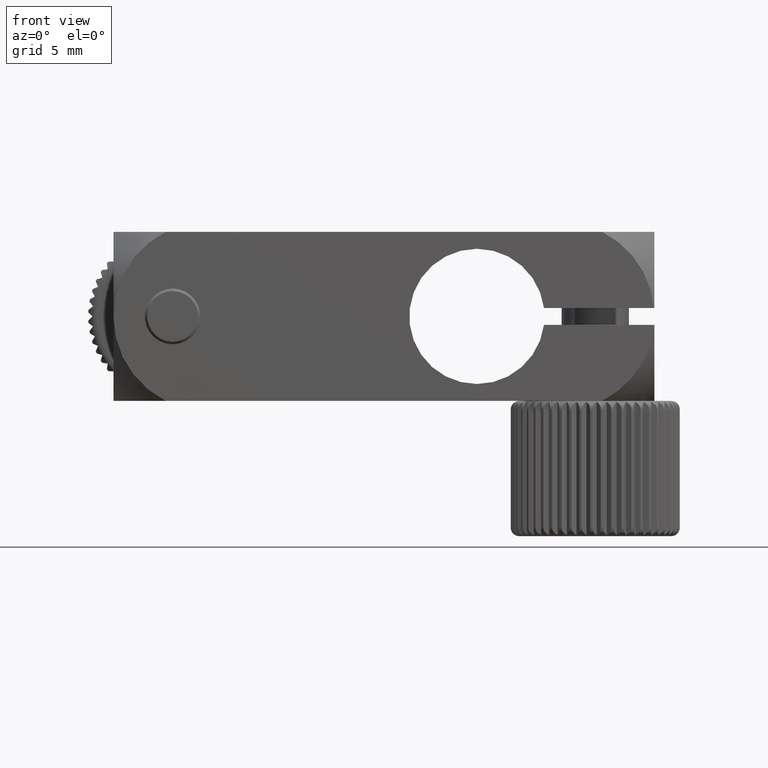
[diagram: clean part render]
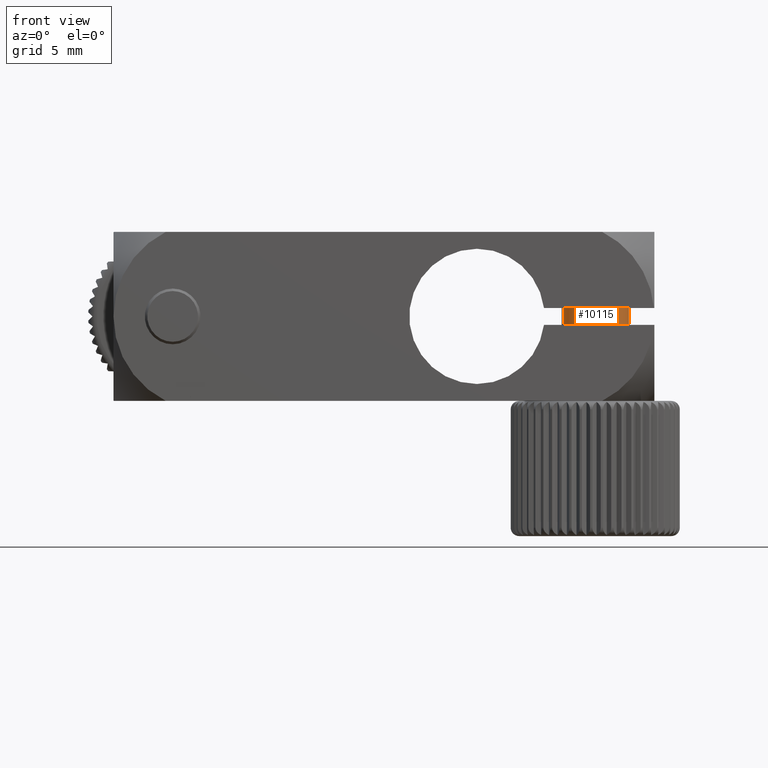
[diagram: same view with one face highlighted and labeled with its STEP entity id]
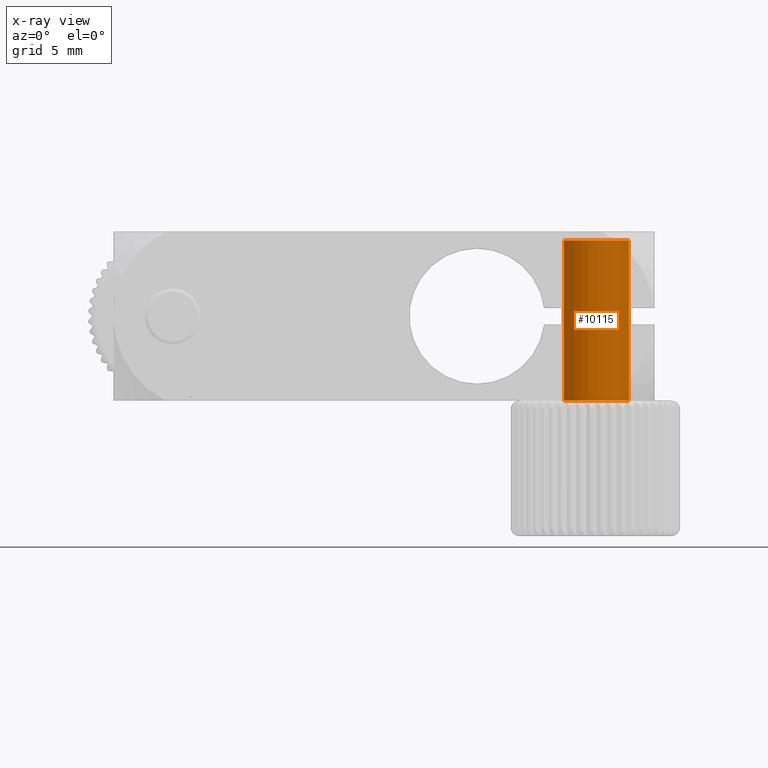
[diagram: x-ray of the same camera — body ghosted, the highlighted face saturated]
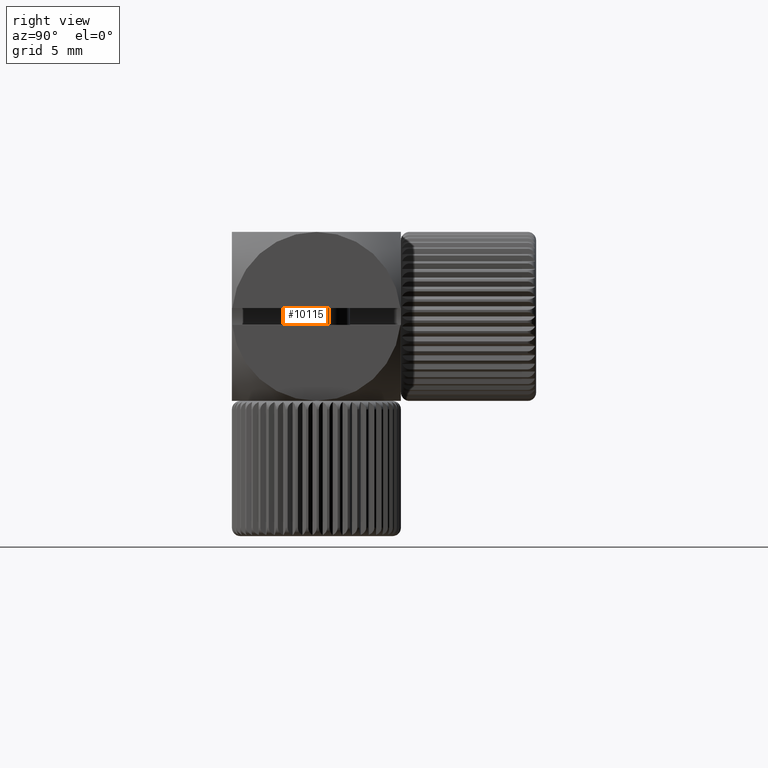
[diagram: same view with one face highlighted and labeled with its STEP entity id]
A machine part, front view. The second image highlights one B-rep face of the part: STEP entity #10115.
The next image is the same camera in x-ray: the body ghosted, the highlighted face saturated — about 0% of this face is hidden behind the body in this view.
A second angle (right view) of the same face is appended — the face is thin or edge-on in the first view.
In plain terms, the highlighted cylindrical surface (edge-blend (fillet) strip) has radius 2 mm, axis along (0, 0, 1).
Its self-contained STEP definition (entity closure, byte-faithful):
#135 = VECTOR ( 'NONE', #7517, 1000.000000000000000 ) ;
#1218 = CARTESIAN_POINT ( 'NONE',  ( 12.49999999999999600, 0.0000000000000000000, 4.499999999999990200 ) ) ;
#1433 = DIRECTION ( 'NONE',  ( 0.0000000000000000000, 0.0000000000000000000, 1.000000000000000000 ) ) ;
#1549 = CARTESIAN_POINT ( 'NONE',  ( 10.65254395730585900, -0.7660980161264746600, 4.499999999999990200 ) ) ;
#2212 = VERTEX_POINT ( 'NONE', #20132 ) ;
#2628 = CYLINDRICAL_SURFACE ( 'NONE', #20012, 2.000000000000002200 ) ;
#2709 = CARTESIAN_POINT ( 'NONE',  ( 14.34745604269413700, 0.7660980161264756600, -5.000000000000004400 ) ) ;
#3505 = CARTESIAN_POINT ( 'NONE',  ( 12.49999999999999600, 0.0000000000000000000, 43.96273327591156000 ) ) ;
#4132 = ORIENTED_EDGE ( 'NONE', *, *, #7294, .T. ) ;
#4337 = LINE ( 'NONE', #20164, #19074 ) ;
#4770 = CARTESIAN_POINT ( 'NONE',  ( 12.49999999999999600, 0.0000000000000000000, -5.000000000000004400 ) ) ;
#5090 = DIRECTION ( 'NONE',  ( 0.0000000000000000000, 0.0000000000000000000, 1.000000000000000000 ) ) ;
#5723 = DIRECTION ( 'NONE',  ( -0.9237280213470684400, -0.3830490080632372200, 0.0000000000000000000 ) ) ;
#7291 = VERTEX_POINT ( 'NONE', #2709 ) ;
#7294 = EDGE_CURVE ( 'NONE', #7291, #2212, #4337, .T. ) ;
#7404 = VERTEX_POINT ( 'NONE', #1549 ) ;
#7517 = DIRECTION ( 'NONE',  ( 0.0000000000000000000, 0.0000000000000000000, 1.000000000000000000 ) ) ;
#9326 = CARTESIAN_POINT ( 'NONE',  ( 10.65254395730585900, -0.7660980161264749900, -5.000000000000004400 ) ) ;
#9470 = LINE ( 'NONE', #13787, #135 ) ;
#10115 = ADVANCED_FACE ( 'NONE', ( #17643 ), #2628, .T. ) ;
#10765 = DIRECTION ( 'NONE',  ( 0.0000000000000000000, 0.0000000000000000000, 1.000000000000000000 ) ) ;
#12017 = EDGE_CURVE ( 'NONE', #12259, #7404, #9470, .T. ) ;
#12259 = VERTEX_POINT ( 'NONE', #9326 ) ;
#12448 = ORIENTED_EDGE ( 'NONE', *, *, #12017, .F. ) ;
#12688 = DIRECTION ( 'NONE',  ( 0.9237280213470684400, 0.3830490080632370500, 0.0000000000000000000 ) ) ;
#12817 = ORIENTED_EDGE ( 'NONE', *, *, #15946, .T. ) ;
#13120 = AXIS2_PLACEMENT_3D ( 'NONE', #1218, #13575, #5723 ) ;
#13320 = CIRCLE ( 'NONE', #13120, 2.000000000000002200 ) ;
#13575 = DIRECTION ( 'NONE',  ( 0.0000000000000000000, 0.0000000000000000000, -1.000000000000000000 ) ) ;
#13787 = CARTESIAN_POINT ( 'NONE',  ( 10.65254395730585900, -0.7660980161264751000, 43.96273327591156000 ) ) ;
#14134 = AXIS2_PLACEMENT_3D ( 'NONE', #4770, #1433, #12688 ) ;
#14325 = CIRCLE ( 'NONE', #14134, 2.000000000000004000 ) ;
#14682 = EDGE_LOOP ( 'NONE', ( #12448, #12817, #4132, #16299 ) ) ;
#15946 = EDGE_CURVE ( 'NONE', #12259, #7291, #14325, .T. ) ;
#16299 = ORIENTED_EDGE ( 'NONE', *, *, #17693, .T. ) ;
#17643 = FACE_OUTER_BOUND ( 'NONE', #14682, .T. ) ;
#17693 = EDGE_CURVE ( 'NONE', #2212, #7404, #13320, .T. ) ;
#17733 = DIRECTION ( 'NONE',  ( 0.9237280213470684400, 0.3830490080632372200, 0.0000000000000000000 ) ) ;
#19074 = VECTOR ( 'NONE', #10765, 1000.000000000000000 ) ;
#20012 = AXIS2_PLACEMENT_3D ( 'NONE', #3505, #5090, #17733 ) ;
#20132 = CARTESIAN_POINT ( 'NONE',  ( 14.34745604269413400, 0.7660980161264748800, 4.499999999999990200 ) ) ;
#20164 = CARTESIAN_POINT ( 'NONE',  ( 14.34745604269413600, 0.7660980161264753200, 43.96273327591156000 ) ) ;